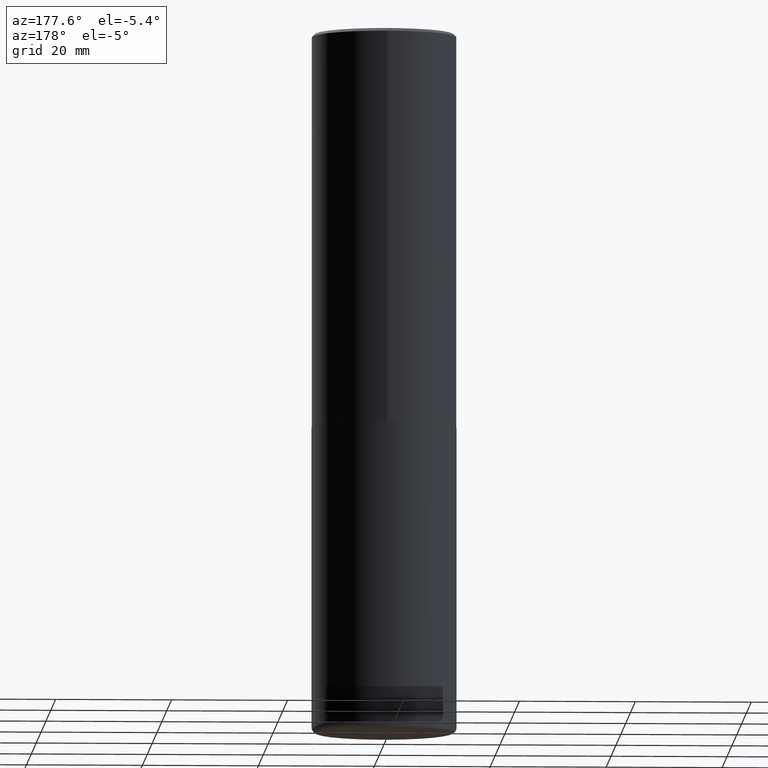
[diagram: clean part render]
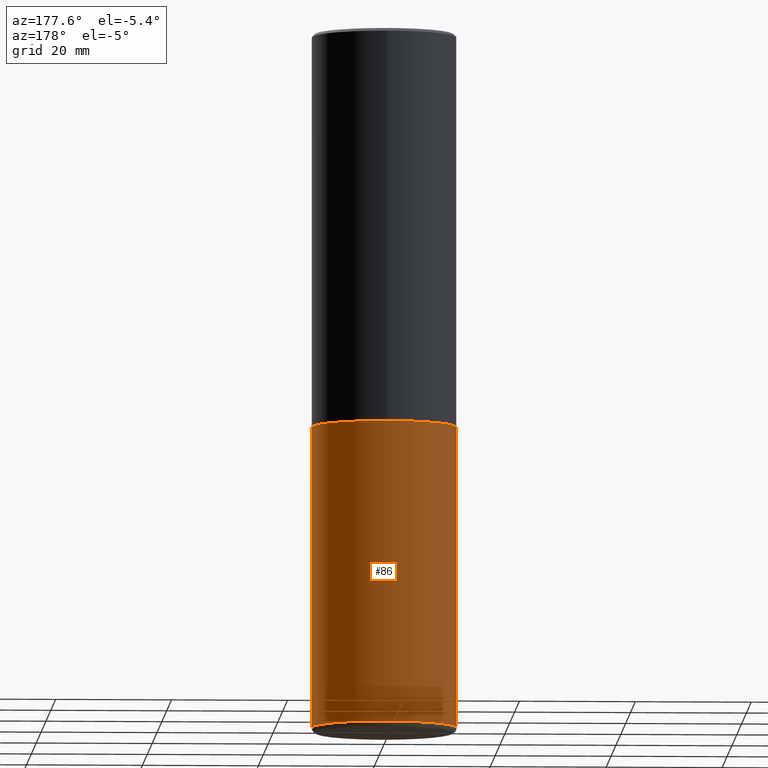
[diagram: same view with one face highlighted and labeled with its STEP entity id]
A machine part, auxiliary view. The second image highlights one B-rep face of the part: STEP entity #86.
In plain terms, the highlighted cylindrical surface (partial cylindrical patch) has radius 12.5006 mm, axis along (-0, 0, 1).
Its self-contained STEP definition (entity closure, byte-faithful):
#26 = DIRECTION ( 'NONE',  ( 1.000000000000000000, -6.982962677686265922E-15, 0.000000000000000000 ) ) ;
#27 = CARTESIAN_POINT ( 'NONE',  ( 0.4921500000000000874, -1.993181951905385030E-14, -4.724399999999999267 ) ) ;
#33 = CYLINDRICAL_SURFACE ( 'NONE', #150, 0.4921499999999999764 ) ;
#41 = EDGE_CURVE ( 'NONE', #81, #361, #148, .T. ) ;
#81 = VERTEX_POINT ( 'NONE', #220 ) ;
#86 = ADVANCED_FACE ( 'NONE', ( #354 ), #33, .T. ) ;
#88 = DIRECTION ( 'NONE',  ( -2.445468806185136877E-29, 3.491481338843145188E-15, 1.000000000000000000 ) ) ;
#90 = LINE ( 'NONE', #192, #196 ) ;
#97 = AXIS2_PLACEMENT_3D ( 'NONE', #289, #359, #327 ) ;
#105 = CARTESIAN_POINT ( 'NONE',  ( 0.4921499999999999764, -1.278405892217416209E-14, -2.677199999999999580 ) ) ;
#118 = DIRECTION ( 'NONE',  ( -2.445468806185136597E-29, 3.491481338843145583E-15, 1.000000000000000000 ) ) ;
#146 = CARTESIAN_POINT ( 'NONE',  ( -0.4921499999999999764, 3.496936074043332897E-15, -2.420853904668951509E-29 ) ) ;
#148 = LINE ( 'NONE', #146, #206 ) ;
#150 = AXIS2_PLACEMENT_3D ( 'NONE', #248, #381, #155 ) ;
#155 = DIRECTION ( 'NONE',  ( 1.000000000000000000, -6.982962677686265922E-15, 4.876176775795935793E-29 ) ) ;
#188 = EDGE_CURVE ( 'NONE', #406, #372, #90, .T. ) ;
#192 = CARTESIAN_POINT ( 'NONE',  ( 0.4921499999999999764, -3.436665081823295777E-15, 2.399810400207969603E-29 ) ) ;
#196 = VECTOR ( 'NONE', #250, 39.37007874015748143 ) ;
#197 = EDGE_LOOP ( 'NONE', ( #408, #356, #363, #256 ) ) ;
#199 = EDGE_CURVE ( 'NONE', #372, #361, #238, .T. ) ;
#206 = VECTOR ( 'NONE', #88, 39.37007874015748143 ) ;
#220 = CARTESIAN_POINT ( 'NONE',  ( -0.4921500000000000874, -1.299821836318722241E-14, -4.724399999999999267 ) ) ;
#238 = CIRCLE ( 'NONE', #358, 0.4921499999999999764 ) ;
#248 = CARTESIAN_POINT ( 'NONE',  ( 0.000000000000000000, 0.000000000000000000, 0.000000000000000000 ) ) ;
#250 = DIRECTION ( 'NONE',  ( -2.445468806185136877E-29, 3.491481338843145188E-15, 1.000000000000000000 ) ) ;
#256 = ORIENTED_EDGE ( 'NONE', *, *, #188, .F. ) ;
#257 = CARTESIAN_POINT ( 'NONE',  ( -0.4921499999999999764, -9.424338064747378311E-15, -2.677199999999999580 ) ) ;
#289 = CARTESIAN_POINT ( 'NONE',  ( 1.155337282794105951E-28, -1.649515443723055610E-14, -4.724399999999999267 ) ) ;
#298 = CIRCLE ( 'NONE', #97, 0.4921499999999999764 ) ;
#327 = DIRECTION ( 'NONE',  ( 1.000000000000000000, -6.982962677686261977E-15, 0.000000000000000000 ) ) ;
#354 = FACE_OUTER_BOUND ( 'NONE', #197, .T. ) ;
#356 = ORIENTED_EDGE ( 'NONE', *, *, #41, .T. ) ;
#358 = AXIS2_PLACEMENT_3D ( 'NONE', #382, #118, #26 ) ;
#359 = DIRECTION ( 'NONE',  ( -2.445468806185136597E-29, 3.491481338843145583E-15, 1.000000000000000000 ) ) ;
#361 = VERTEX_POINT ( 'NONE', #257 ) ;
#363 = ORIENTED_EDGE ( 'NONE', *, *, #199, .F. ) ;
#371 = EDGE_CURVE ( 'NONE', #406, #81, #298, .T. ) ;
#372 = VERTEX_POINT ( 'NONE', #105 ) ;
#381 = DIRECTION ( 'NONE',  ( -2.445468806185136597E-29, 3.491481338843145583E-15, 1.000000000000000000 ) ) ;
#382 = CARTESIAN_POINT ( 'NONE',  ( 6.547009087918846705E-29, -9.347393840350866318E-15, -2.677199999999999580 ) ) ;
#406 = VERTEX_POINT ( 'NONE', #27 ) ;
#408 = ORIENTED_EDGE ( 'NONE', *, *, #371, .T. ) ;